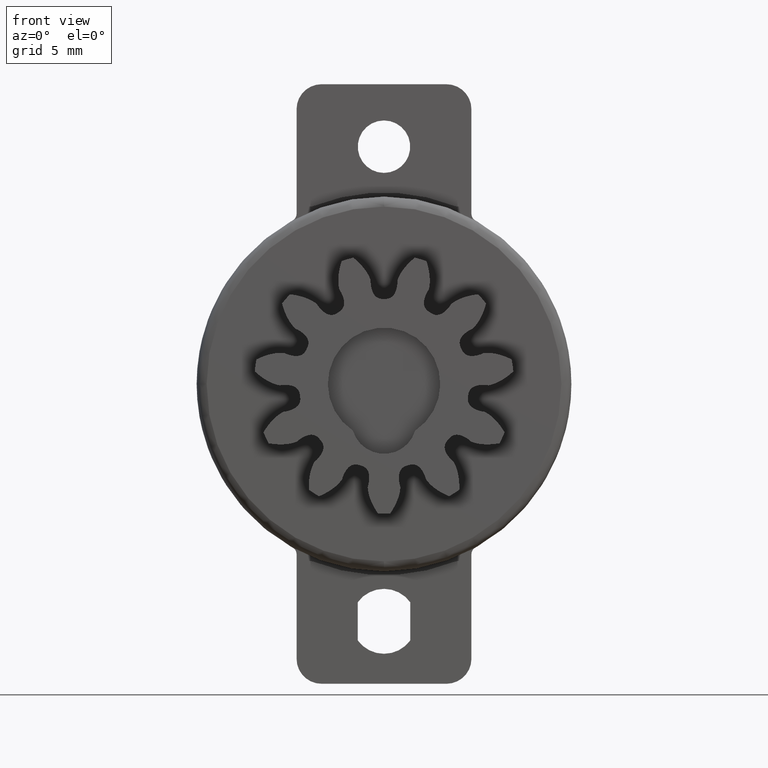
[diagram: clean part render]
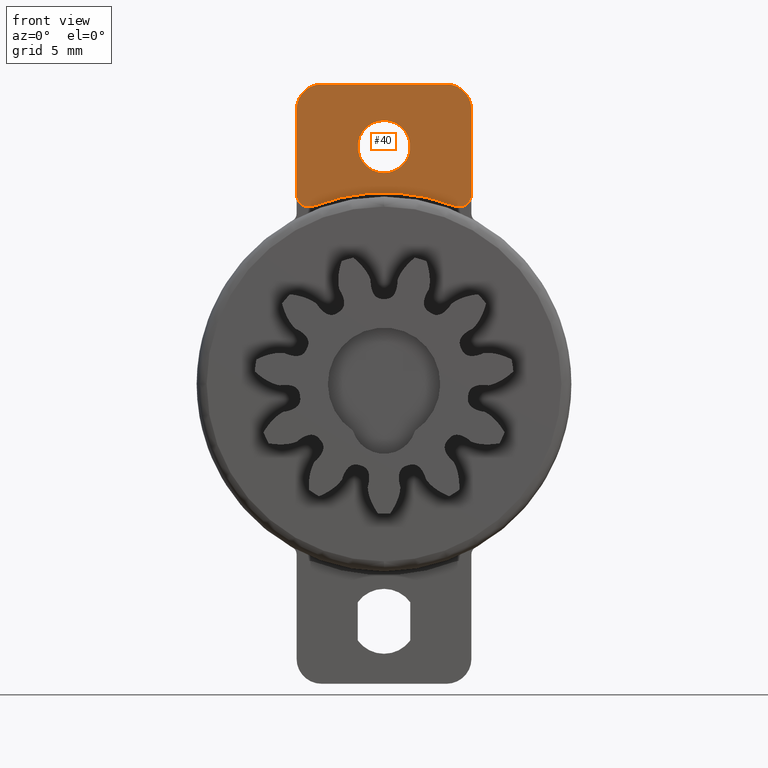
[diagram: same view with one face highlighted and labeled with its STEP entity id]
A machine part, front view. The second image highlights one B-rep face of the part: STEP entity #40.
In plain terms, the highlighted planar face has unit normal (0, -1, 0).
Its self-contained STEP definition (entity closure, byte-faithful):
#40=ADVANCED_FACE('',(#685,#686),#684,.T.);
#684=PLANE('',#7135);
#685=FACE_OUTER_BOUND('',#7136,.T.);
#686=FACE_BOUND('',#7137,.T.);
#7132=CARTESIAN_POINT('',(-4.20000011444E+00,-2.00000000000E+00,1.25148186929E+01));
#7133=DIRECTION('',(0.00000000000E+00,-1.00000000000E+00,0.00000000000E+00));
#7134=DIRECTION('',(0.00000000000E+00,0.00000000000E+00,-1.00000000000E+00));
#7135=AXIS2_PLACEMENT_3D('',#7132,#7133,#7134);
#7136=EDGE_LOOP('',(#10458,#10459,#10460,#10461,#10462,#10463,#10464,#10465));
#7137=EDGE_LOOP('',(#10466,#10467));
#10458=ORIENTED_EDGE('',*,*,#14274,.T.);
#10459=ORIENTED_EDGE('',*,*,#14275,.T.);
#10460=ORIENTED_EDGE('',*,*,#14276,.T.);
#10461=ORIENTED_EDGE('',*,*,#14277,.F.);
#10462=ORIENTED_EDGE('',*,*,#14278,.T.);
#10463=ORIENTED_EDGE('',*,*,#14279,.T.);
#10464=ORIENTED_EDGE('',*,*,#14280,.T.);
#10465=ORIENTED_EDGE('',*,*,#14281,.T.);
#10466=ORIENTED_EDGE('',*,*,#14282,.F.);
#10467=ORIENTED_EDGE('',*,*,#14283,.F.);
#14274=EDGE_CURVE('',#16182,#16183,#16184,.T.);
#14275=EDGE_CURVE('',#16183,#16190,#16191,.T.);
#14276=EDGE_CURVE('',#16190,#16197,#16198,.T.);
#14277=EDGE_CURVE('',#16204,#16197,#16205,.T.);
#14278=EDGE_CURVE('',#16204,#16211,#16212,.T.);
#14279=EDGE_CURVE('',#16211,#16218,#16219,.T.);
#14280=EDGE_CURVE('',#16218,#16225,#16226,.T.);
#14281=EDGE_CURVE('',#16225,#16182,#16232,.T.);
#14282=EDGE_CURVE('',#16238,#16239,#16240,.T.);
#14283=EDGE_CURVE('',#16239,#16238,#16246,.T.);
#16182=VERTEX_POINT('',#28900);
#16183=VERTEX_POINT('',#28901);
#16184=CIRCLE('',#28905,1.00000009537E+00);
#16190=VERTEX_POINT('',#28906);
#16191=LINE('',#28907,#28908);
#16197=VERTEX_POINT('',#28910);
#16198=CIRCLE('',#28914,5.00061204412E-01);
#16204=VERTEX_POINT('',#28915);
#16205=CIRCLE('',#28919,7.65862092934E+00);
#16211=VERTEX_POINT('',#28920);
#16212=CIRCLE('',#28924,5.00061150665E-01);
#16218=VERTEX_POINT('',#28925);
#16219=LINE('',#28926,#28927);
#16225=VERTEX_POINT('',#28929);
#16226=CIRCLE('',#28933,1.00000009537E+00);
#16232=LINE('',#28934,#28935);
#16238=VERTEX_POINT('',#28937);
#16239=VERTEX_POINT('',#28938);
#16240=CIRCLE('',#28942,1.05000010014E+00);
#16246=CIRCLE('',#28946,1.05000010014E+00);
#28900=CARTESIAN_POINT('',(-2.50000000000E+00,-2.00000000000E+00,1.20000016000E+01));
#28901=CARTESIAN_POINT('',(-3.50000000000E+00,-2.00000000000E+00,1.10000000000E+01));
#28902=CARTESIAN_POINT('',(-2.50000000000E+00,-2.00000000000E+00,1.10000000000E+01));
#28903=DIRECTION('',(0.00000000000E+00,-1.00000000000E+00,0.00000000000E+00));
#28904=DIRECTION('',(-0.00000000000E+00,-0.00000000000E+00,1.00000000000E+00));
#28905=AXIS2_PLACEMENT_3D('',#28902,#28903,#28904);
#28906=CARTESIAN_POINT('',(-3.50000000000E+00,-2.00000000000E+00,7.58711540000E+00));
#28907=CARTESIAN_POINT('',(-3.50000000000E+00,-2.00000000000E+00,1.10000000000E+01));
#28908=VECTOR('',#28909,3.41288460000E+00);
#28909=DIRECTION('',(0.00000000000E+00,0.00000000000E+00,-1.00000000000E+00));
#28910=CARTESIAN_POINT('',(-2.81616939420E+00,-2.00000000000E+00,7.12204549636E+00));
#28911=CARTESIAN_POINT('',(-2.99993879559E+00,-2.00000000000E+00,7.58711540000E+00));
#28912=DIRECTION('',(0.00000000000E+00,-1.00000000000E+00,0.00000000000E+00));
#28913=DIRECTION('',(-0.00000000000E+00,-0.00000000000E+00,1.00000000000E+00));
#28914=AXIS2_PLACEMENT_3D('',#28911,#28912,#28913);
#28915=CARTESIAN_POINT('',(2.81617049539E+00,-2.00000000000E+00,7.12205435813E+00));
#28916=CARTESIAN_POINT('',(0.00000000000E+00,-2.00000000000E+00,0.00000000000E+00));
#28917=DIRECTION('',(0.00000000000E+00,-1.00000000000E+00,0.00000000000E+00));
#28918=DIRECTION('',(3.67712480010E-01,0.00000000000E+00,9.29939531391E-01));
#28919=AXIS2_PLACEMENT_3D('',#28916,#28917,#28918);
#28920=CARTESIAN_POINT('',(3.50000000000E+00,-2.00000000000E+00,7.58711540000E+00));
#28921=CARTESIAN_POINT('',(2.99993884933E+00,-2.00000000000E+00,7.58711540000E+00));
#28922=DIRECTION('',(0.00000000000E+00,-1.00000000000E+00,0.00000000000E+00));
#28923=DIRECTION('',(-0.00000000000E+00,-0.00000000000E+00,1.00000000000E+00));
#28924=AXIS2_PLACEMENT_3D('',#28921,#28922,#28923);
#28925=CARTESIAN_POINT('',(3.50000000000E+00,-2.00000000000E+00,1.10000000000E+01));
#28926=CARTESIAN_POINT('',(3.50000000000E+00,-2.00000000000E+00,7.58711540000E+00));
#28927=VECTOR('',#28928,3.41288460000E+00);
#28928=DIRECTION('',(0.00000000000E+00,0.00000000000E+00,1.00000000000E+00));
#28929=CARTESIAN_POINT('',(2.50000008727E+00,-2.00000000000E+00,1.20000000954E+01));
#28930=CARTESIAN_POINT('',(2.50000000000E+00,-2.00000000000E+00,1.10000000000E+01));
#28931=DIRECTION('',(0.00000000000E+00,-1.00000000000E+00,0.00000000000E+00));
#28932=DIRECTION('',(-0.00000000000E+00,-0.00000000000E+00,1.00000000000E+00));
#28933=AXIS2_PLACEMENT_3D('',#28930,#28931,#28932);
#28934=CARTESIAN_POINT('',(2.50000008727E+00,-2.00000000000E+00,1.20000016000E+01));
#28935=VECTOR('',#28936,5.00000008727E+00);
#28936=DIRECTION('',(-1.00000000000E+00,0.00000000000E+00,0.00000000000E+00));
#28937=CARTESIAN_POINT('',(7.40148683083E-17,-2.00000000001E+00,1.05500001001E+01));
#28938=CARTESIAN_POINT('',(0.00000000000E+00,-2.00000000001E+00,8.44999989986E+00));
#28939=CARTESIAN_POINT('',(0.00000000000E+00,-2.00000000001E+00,9.50000000000E+00));
#28940=DIRECTION('',(0.00000000000E+00,-1.00000000000E+00,-0.00000000000E+00));
#28941=DIRECTION('',(-1.22460635382E-16,0.00000000000E+00,-1.00000000000E+00));
#28942=AXIS2_PLACEMENT_3D('',#28939,#28940,#28941);
#28943=CARTESIAN_POINT('',(0.00000000000E+00,-2.00000000001E+00,9.50000000000E+00));
#28944=DIRECTION('',(0.00000000000E+00,-1.00000000000E+00,-0.00000000000E+00));
#28945=DIRECTION('',(-1.22460635382E-16,0.00000000000E+00,-1.00000000000E+00));
#28946=AXIS2_PLACEMENT_3D('',#28943,#28944,#28945);